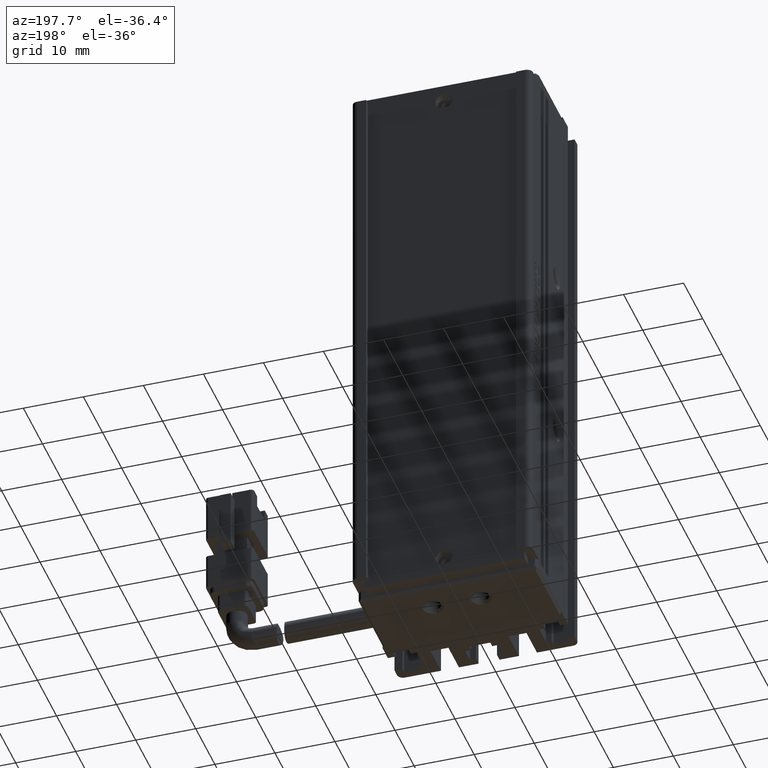
[diagram: clean part render]
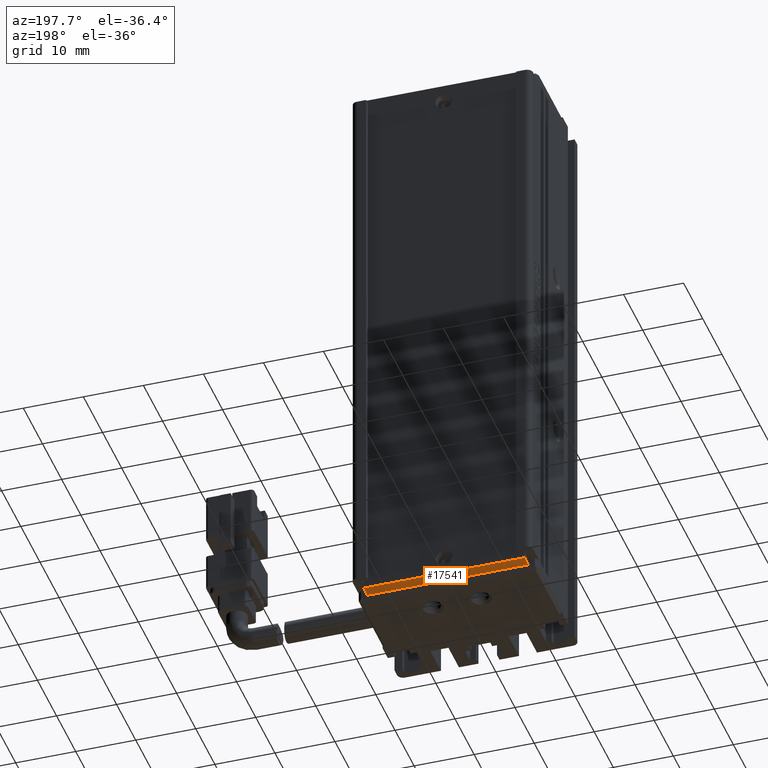
[diagram: same view with one face highlighted and labeled with its STEP entity id]
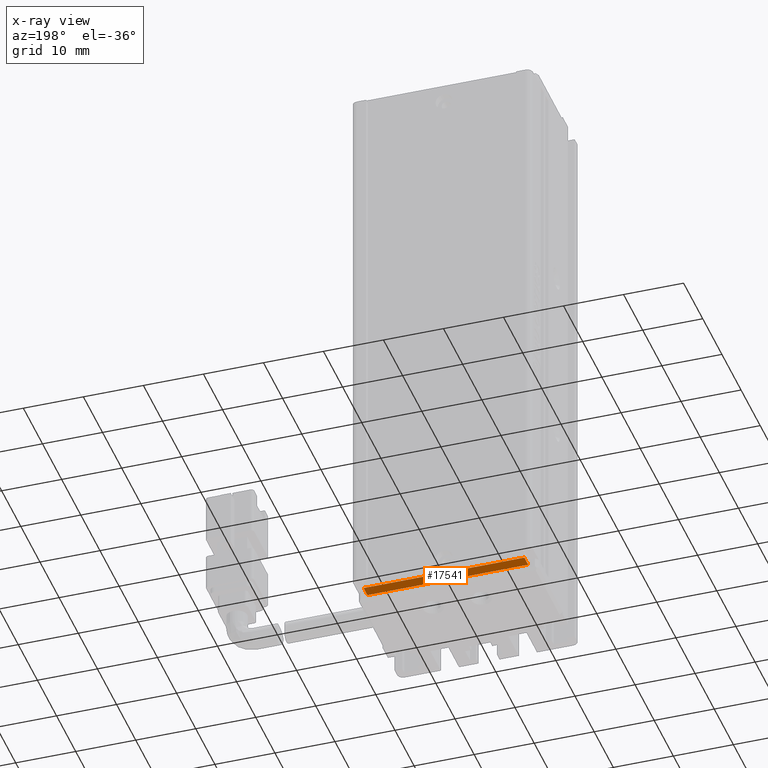
[diagram: x-ray of the same camera — body ghosted, the highlighted face saturated]
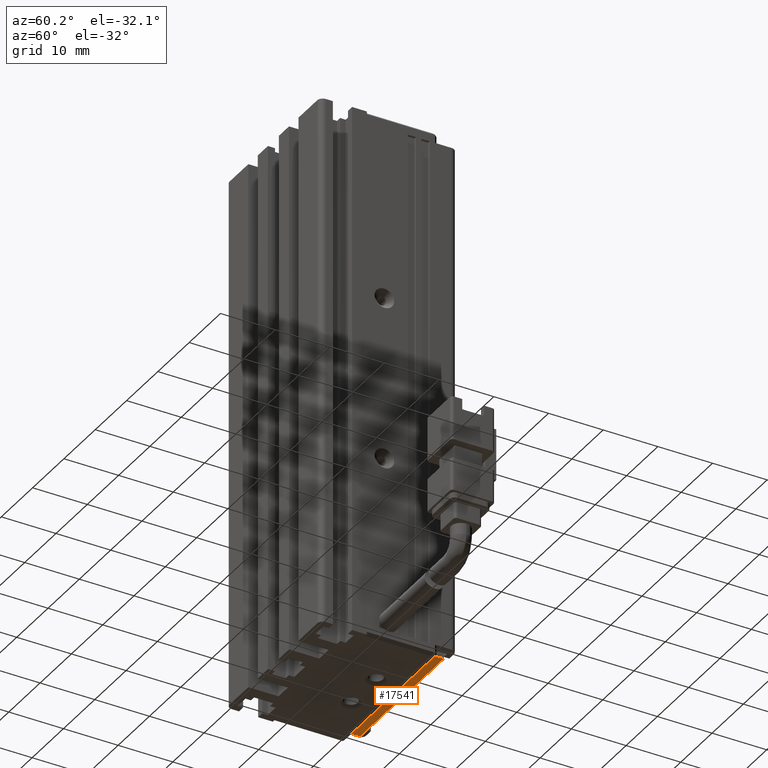
[diagram: same view with one face highlighted and labeled with its STEP entity id]
A machine part, auxiliary view. The second image highlights one B-rep face of the part: STEP entity #17541.
The next image is the same camera in x-ray: the body ghosted, the highlighted face saturated — about 0% of this face is hidden behind the body in this view.
A second angle (auxiliary view) of the same face is appended — the face is thin or edge-on in the first view.
In plain terms, the highlighted planar face has unit normal (0, 0, 1).
Its self-contained STEP definition (entity closure, byte-faithful):
#1591 = LINE ( 'NONE', #27946, #26443 ) ;
#3060 = VECTOR ( 'NONE', #10145, 1000.000000000000000 ) ;
#3125 = EDGE_CURVE ( 'NONE', #13284, #4575, #1591, .T. ) ;
#3488 = EDGE_CURVE ( 'NONE', #20665, #11853, #22247, .T. ) ;
#4131 = ORIENTED_EDGE ( 'NONE', *, *, #3125, .T. ) ;
#4575 = VERTEX_POINT ( 'NONE', #29349 ) ;
#4923 = EDGE_LOOP ( 'NONE', ( #22612, #11742, #6913, #4131 ) ) ;
#6913 = ORIENTED_EDGE ( 'NONE', *, *, #13660, .F. ) ;
#7238 = CARTESIAN_POINT ( 'NONE',  ( 54.32537974683540900, 32.19594479660386100, -162.9999999999999700 ) ) ;
#9869 = LINE ( 'NONE', #12511, #21894 ) ;
#10097 = DIRECTION ( 'NONE',  ( -0.0000000000000000000, 1.000000000000000000, -0.0000000000000000000 ) ) ;
#10145 = DIRECTION ( 'NONE',  ( -1.000000000000000000, -0.0000000000000000000, 5.551115123125781500E-017 ) ) ;
#10575 = FACE_OUTER_BOUND ( 'NONE', #4923, .T. ) ;
#10851 = CARTESIAN_POINT ( 'NONE',  ( 27.52537974683540500, 34.19594479660386800, -162.9999999999999700 ) ) ;
#10979 = EDGE_CURVE ( 'NONE', #4575, #11853, #25770, .T. ) ;
#11742 = ORIENTED_EDGE ( 'NONE', *, *, #3488, .F. ) ;
#11853 = VERTEX_POINT ( 'NONE', #16051 ) ;
#12511 = CARTESIAN_POINT ( 'NONE',  ( 54.32537974683540900, 34.19594479660386800, -162.9999999999999700 ) ) ;
#13248 = DIRECTION ( 'NONE',  ( 0.0000000000000000000, -1.000000000000000000, 0.0000000000000000000 ) ) ;
#13284 = VERTEX_POINT ( 'NONE', #7238 ) ;
#13660 = EDGE_CURVE ( 'NONE', #13284, #20665, #9869, .T. ) ;
#15557 = PLANE ( 'NONE',  #23132 ) ;
#15932 = DIRECTION ( 'NONE',  ( -1.000000000000000000, -0.0000000000000000000, 5.551115123125781500E-017 ) ) ;
#16051 = CARTESIAN_POINT ( 'NONE',  ( 27.52537974683540500, 34.19594479660386800, -162.9999999999999700 ) ) ;
#17273 = DIRECTION ( 'NONE',  ( 0.0000000000000000000, 1.000000000000000000, 0.0000000000000000000 ) ) ;
#17541 = ADVANCED_FACE ( 'NONE', ( #10575 ), #15557, .F. ) ;
#18582 = VECTOR ( 'NONE', #17273, 1000.000000000000000 ) ;
#19467 = CARTESIAN_POINT ( 'NONE',  ( 27.52537974683540500, 34.19594479660386800, -162.9999999999999700 ) ) ;
#20665 = VERTEX_POINT ( 'NONE', #29810 ) ;
#21894 = VECTOR ( 'NONE', #10097, 1000.000000000000000 ) ;
#22247 = LINE ( 'NONE', #27078, #3060 ) ;
#22612 = ORIENTED_EDGE ( 'NONE', *, *, #10979, .T. ) ;
#23132 = AXIS2_PLACEMENT_3D ( 'NONE', #10851, #27671, #13248 ) ;
#25770 = LINE ( 'NONE', #19467, #18582 ) ;
#26443 = VECTOR ( 'NONE', #15932, 1000.000000000000000 ) ;
#27078 = CARTESIAN_POINT ( 'NONE',  ( 27.52537974683540500, 34.19594479660386800, -162.9999999999999700 ) ) ;
#27671 = DIRECTION ( 'NONE',  ( 5.551115123125781500E-017, 0.0000000000000000000, 1.000000000000000000 ) ) ;
#27946 = CARTESIAN_POINT ( 'NONE',  ( 54.32537974683541600, 32.19594479660386100, -162.9999999999999700 ) ) ;
#29349 = CARTESIAN_POINT ( 'NONE',  ( 27.52537974683540500, 32.19594479660386100, -162.9999999999999700 ) ) ;
#29810 = CARTESIAN_POINT ( 'NONE',  ( 54.32537974683540900, 34.19594479660386800, -162.9999999999999700 ) ) ;